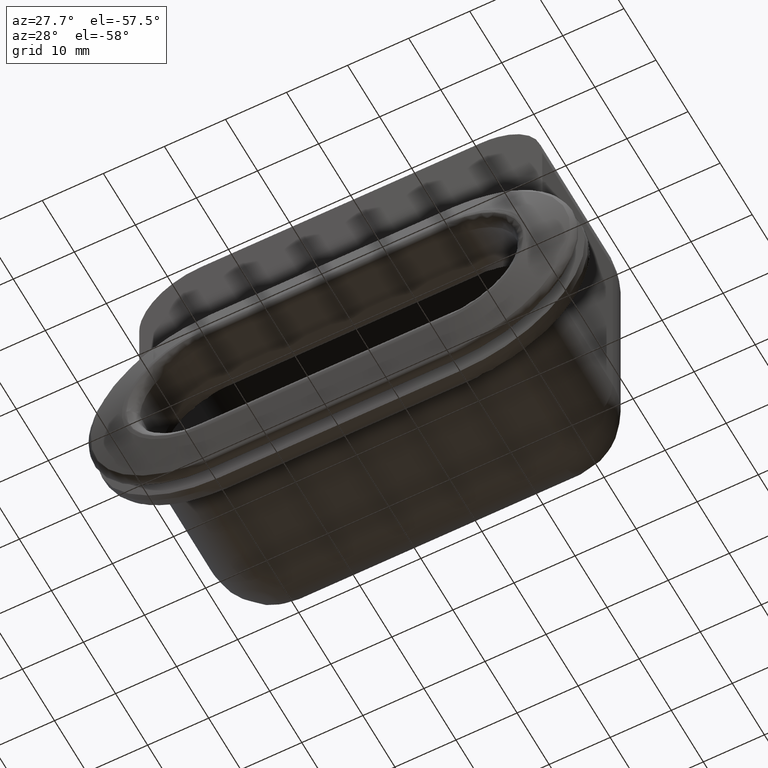
[diagram: clean part render]
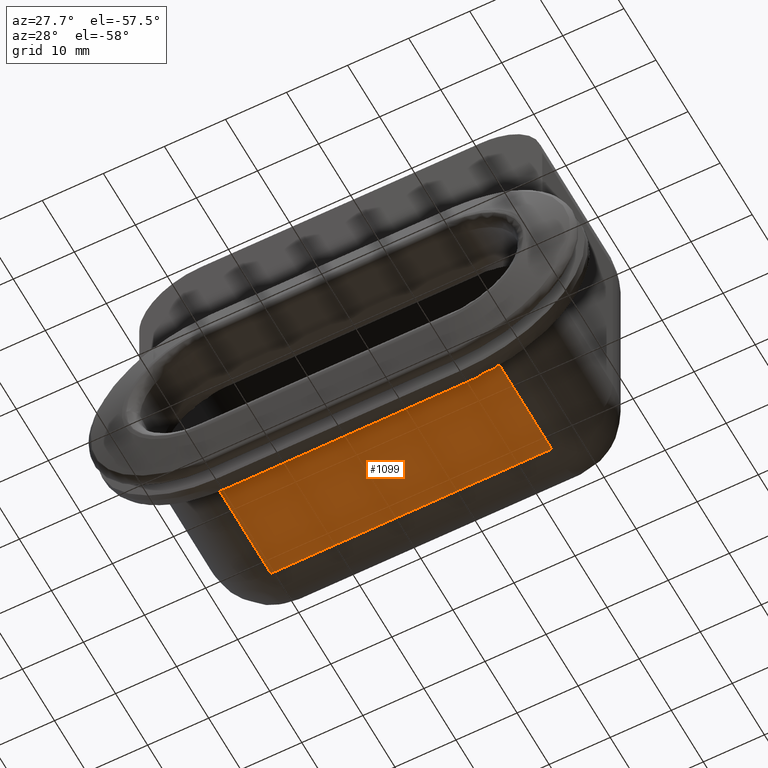
[diagram: same view with one face highlighted and labeled with its STEP entity id]
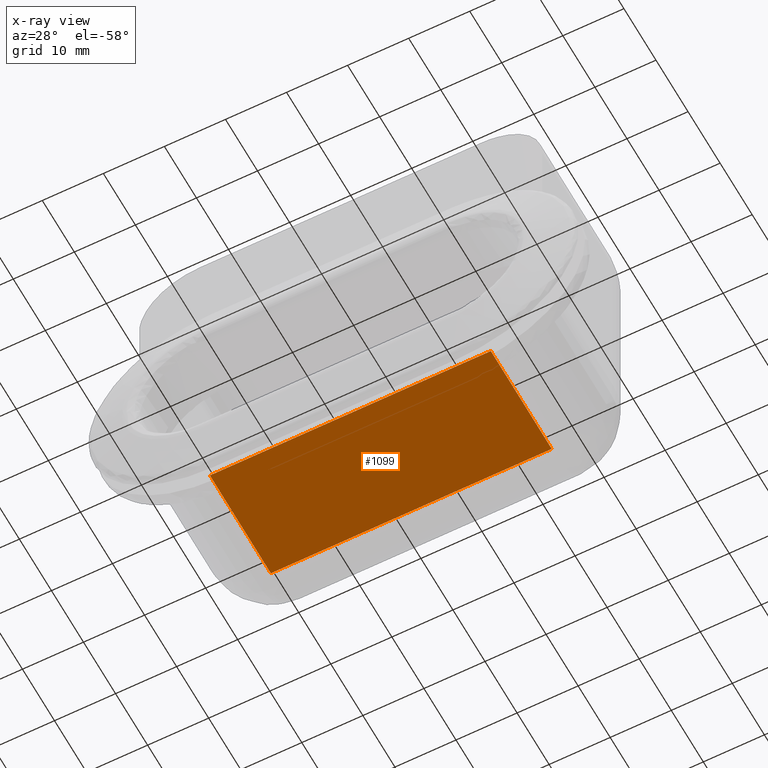
[diagram: x-ray of the same camera — body ghosted, the highlighted face saturated]
A machine part, auxiliary view. The second image highlights one B-rep face of the part: STEP entity #1099.
The next image is the same camera in x-ray: the body ghosted, the highlighted face saturated — about 0% of this face is hidden behind the body in this view.
In plain terms, the highlighted face is a freeform B-spline surface patch.
Its self-contained STEP definition (entity closure, byte-faithful):
#833=CARTESIAN_POINT('',(-23.0,27.0,-13.0));
#834=VERTEX_POINT('',#833);
#848=CARTESIAN_POINT('',(-23.0,8.0,-13.0));
#849=VERTEX_POINT('',#848);
#850=CARTESIAN_POINT('',(-23.0,8.0,-13.0));
#851=CARTESIAN_POINT('',(-23.0,27.0,-13.0));
#852=QUASI_UNIFORM_CURVE('',1,(#850,#851),.UNSPECIFIED.,.F.,.U.);
#853=EDGE_CURVE('',#849,#834,#852,.T.);
#881=CARTESIAN_POINT('',(23.0,8.0,-13.0));
#882=VERTEX_POINT('',#881);
#883=CARTESIAN_POINT('',(-23.0,8.0,-13.0));
#884=CARTESIAN_POINT('',(23.0,8.0,-13.0));
#885=QUASI_UNIFORM_CURVE('',1,(#883,#884),.UNSPECIFIED.,.F.,.U.);
#886=EDGE_CURVE('',#849,#882,#885,.T.);
#972=CARTESIAN_POINT('',(23.0,27.0,-13.0));
#973=VERTEX_POINT('',#972);
#974=CARTESIAN_POINT('',(23.0,27.0,-13.0));
#975=CARTESIAN_POINT('',(23.0,8.0,-13.0));
#976=QUASI_UNIFORM_CURVE('',1,(#974,#975),.UNSPECIFIED.,.F.,.U.);
#977=EDGE_CURVE('',#973,#882,#976,.T.);
#1084=CARTESIAN_POINT('',(25.297699910843079,7.050950036825686,-13.0));
#1085=CARTESIAN_POINT('',(-25.297701144659229,7.050950036825686,-13.0));
#1086=CARTESIAN_POINT('',(25.297699910843079,27.949050472794021,-13.0));
#1087=CARTESIAN_POINT('',(-25.297701144659229,27.949050472794021,-13.0));
#1088=B_SPLINE_SURFACE_WITH_KNOTS('',1,1,((#1084,#1086),(#1085,#1087)),.UNSPECIFIED.,.F.,.F.,.U.,(2,2),(2,2),(0.0,50.595401055502307),(0.0,20.898100435968342),.UNSPECIFIED.);
#1089=ORIENTED_EDGE('',*,*,#886,.F.);
#1090=ORIENTED_EDGE('',*,*,#853,.T.);
#1091=CARTESIAN_POINT('',(-23.0,27.0,-13.0));
#1092=CARTESIAN_POINT('',(23.0,27.0,-13.0));
#1093=QUASI_UNIFORM_CURVE('',1,(#1091,#1092),.UNSPECIFIED.,.F.,.U.);
#1094=EDGE_CURVE('',#834,#973,#1093,.T.);
#1095=ORIENTED_EDGE('',*,*,#1094,.T.);
#1096=ORIENTED_EDGE('',*,*,#977,.T.);
#1097=EDGE_LOOP('',(#1089,#1090,#1095,#1096));
#1098=FACE_OUTER_BOUND('',#1097,.T.);
#1099=ADVANCED_FACE('',(#1098),#1088,.T.);